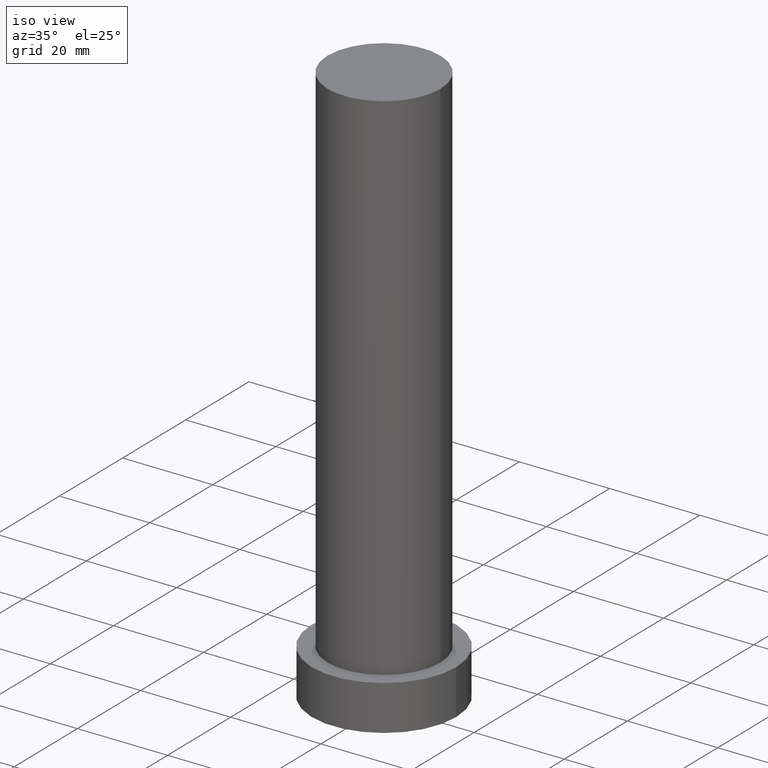
[diagram: clean part render]
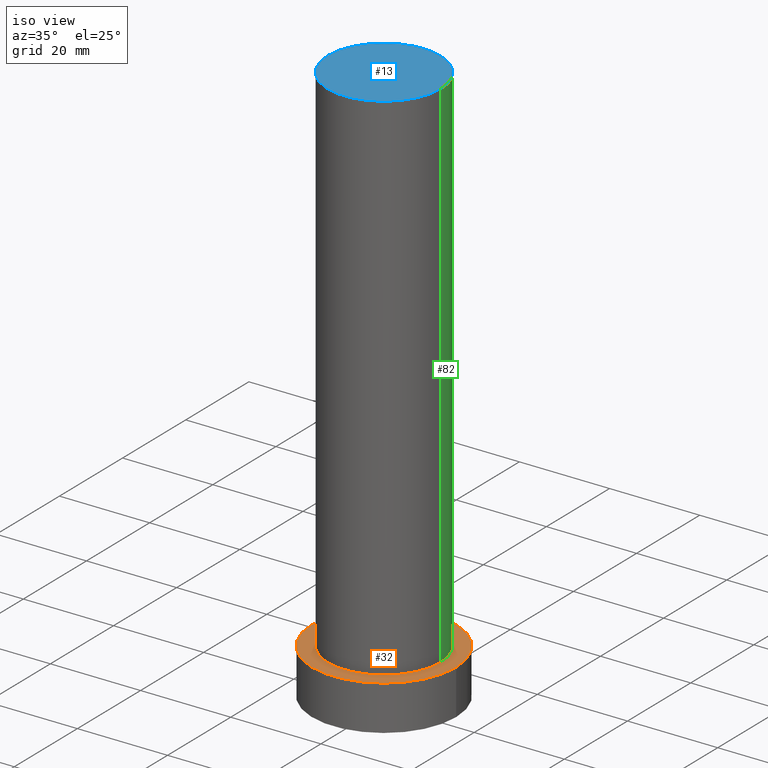
[diagram: same view with three faces highlighted in distinct colors, each labeled with its STEP entity id]
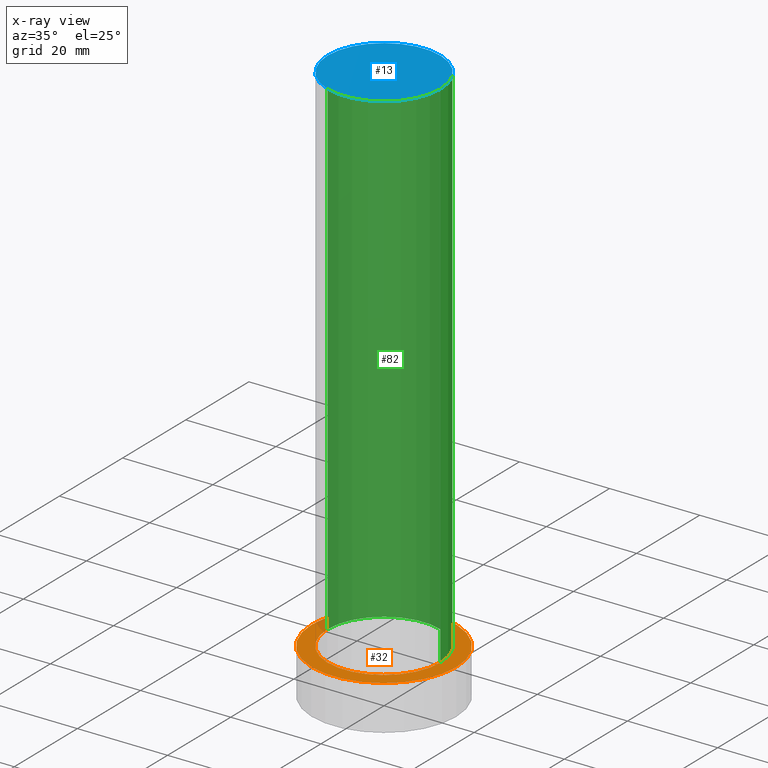
[diagram: x-ray of the same camera — body ghosted, the three highlighted faces saturated]
A machine part, iso view with three faces highlighted in distinct colors.
The next image is the same camera in x-ray (body ghosted, the three faces saturated) — at least one of them is partly hidden behind the body in this view.
Their STEP definitions:

[orange] entity #32 — the highlighted planar face has unit normal (0, 0, 1).
#6 = EDGE_CURVE ( 'NONE', #225, #93, #152, .T. ) ;
#7 = AXIS2_PLACEMENT_3D ( 'NONE', #226, #147, #50 ) ;
#8 = CARTESIAN_POINT ( 'NONE',  ( 0.000000000000000000, 0.000000000000000000, 10.00000000000000000 ) ) ;
#9 = FACE_BOUND ( 'NONE', #143, .T. ) ;
#11 = AXIS2_PLACEMENT_3D ( 'NONE', #48, #129, #70 ) ;
#16 = CARTESIAN_POINT ( 'NONE',  ( 12.50000000000000000, 1.530808498934191521E-15, 10.00000000000000000 ) ) ;
#20 = DIRECTION ( 'NONE',  ( 1.000000000000000000, 0.000000000000000000, 0.000000000000000000 ) ) ;
#27 = DIRECTION ( 'NONE',  ( 1.000000000000000000, 0.000000000000000000, 0.000000000000000000 ) ) ;
#28 = DIRECTION ( 'NONE',  ( 1.000000000000000000, 0.000000000000000000, 0.000000000000000000 ) ) ;
#32 = ADVANCED_FACE ( 'NONE', ( #9, #88 ), #86, .T. ) ;
#41 = CIRCLE ( 'NONE', #217, 16.00000000000000000 ) ;
#43 = EDGE_CURVE ( 'NONE', #165, #206, #109, .T. ) ;
#48 = CARTESIAN_POINT ( 'NONE',  ( 0.000000000000000000, 0.000000000000000000, 10.00000000000000000 ) ) ;
#49 = EDGE_LOOP ( 'NONE', ( #92, #106 ) ) ;
#50 = DIRECTION ( 'NONE',  ( 1.000000000000000000, 0.000000000000000000, 0.000000000000000000 ) ) ;
#64 = EDGE_CURVE ( 'NONE', #206, #165, #41, .T. ) ;
#70 = DIRECTION ( 'NONE',  ( 1.000000000000000000, 0.000000000000000000, -0.000000000000000000 ) ) ;
#71 = CARTESIAN_POINT ( 'NONE',  ( -16.00000000000000000, 0.000000000000000000, 10.00000000000000000 ) ) ;
#86 = PLANE ( 'NONE',  #11 ) ;
#88 = FACE_OUTER_BOUND ( 'NONE', #49, .T. ) ;
#92 = ORIENTED_EDGE ( 'NONE', *, *, #64, .T. ) ;
#93 = VERTEX_POINT ( 'NONE', #16 ) ;
#106 = ORIENTED_EDGE ( 'NONE', *, *, #43, .T. ) ;
#109 = CIRCLE ( 'NONE', #140, 16.00000000000000000 ) ;
#110 = DIRECTION ( 'NONE',  ( 0.000000000000000000, 0.000000000000000000, 1.000000000000000000 ) ) ;
#113 = ORIENTED_EDGE ( 'NONE', *, *, #6, .F. ) ;
#129 = DIRECTION ( 'NONE',  ( 0.000000000000000000, 0.000000000000000000, 1.000000000000000000 ) ) ;
#135 = DIRECTION ( 'NONE',  ( 0.000000000000000000, 0.000000000000000000, 1.000000000000000000 ) ) ;
#140 = AXIS2_PLACEMENT_3D ( 'NONE', #200, #110, #27 ) ;
#143 = EDGE_LOOP ( 'NONE', ( #113, #170 ) ) ;
#147 = DIRECTION ( 'NONE',  ( 0.000000000000000000, 0.000000000000000000, 1.000000000000000000 ) ) ;
#152 = CIRCLE ( 'NONE', #7, 12.50000000000000000 ) ;
#161 = CARTESIAN_POINT ( 'NONE',  ( -12.50000000000000000, 0.000000000000000000, 10.00000000000000000 ) ) ;
#165 = VERTEX_POINT ( 'NONE', #167 ) ;
#166 = DIRECTION ( 'NONE',  ( 0.000000000000000000, 0.000000000000000000, 1.000000000000000000 ) ) ;
#167 = CARTESIAN_POINT ( 'NONE',  ( 16.00000000000000000, 1.959434878635765131E-15, 10.00000000000000000 ) ) ;
#170 = ORIENTED_EDGE ( 'NONE', *, *, #201, .F. ) ;
#191 = AXIS2_PLACEMENT_3D ( 'NONE', #233, #135, #20 ) ;
#200 = CARTESIAN_POINT ( 'NONE',  ( 0.000000000000000000, 0.000000000000000000, 10.00000000000000000 ) ) ;
#201 = EDGE_CURVE ( 'NONE', #93, #225, #247, .T. ) ;
#206 = VERTEX_POINT ( 'NONE', #71 ) ;
#217 = AXIS2_PLACEMENT_3D ( 'NONE', #8, #166, #28 ) ;
#225 = VERTEX_POINT ( 'NONE', #161 ) ;
#226 = CARTESIAN_POINT ( 'NONE',  ( 0.000000000000000000, 0.000000000000000000, 10.00000000000000000 ) ) ;
#233 = CARTESIAN_POINT ( 'NONE',  ( 0.000000000000000000, 0.000000000000000000, 10.00000000000000000 ) ) ;
#247 = CIRCLE ( 'NONE', #191, 12.50000000000000000 ) ;

[blue] entity #13 — the highlighted planar face has unit normal (0, 0, 1).
#13 = ADVANCED_FACE ( 'NONE', ( #228 ), #123, .T. ) ;
#25 = CIRCLE ( 'NONE', #116, 12.50000000000000000 ) ;
#30 = AXIS2_PLACEMENT_3D ( 'NONE', #53, #194, #34 ) ;
#31 = VERTEX_POINT ( 'NONE', #204 ) ;
#34 = DIRECTION ( 'NONE',  ( 1.000000000000000000, 0.000000000000000000, 0.000000000000000000 ) ) ;
#52 = CARTESIAN_POINT ( 'NONE',  ( 0.000000000000000000, 0.000000000000000000, 125.0000000000000000 ) ) ;
#53 = CARTESIAN_POINT ( 'NONE',  ( 0.000000000000000000, 0.000000000000000000, 125.0000000000000000 ) ) ;
#72 = EDGE_LOOP ( 'NONE', ( #240, #73 ) ) ;
#73 = ORIENTED_EDGE ( 'NONE', *, *, #87, .T. ) ;
#87 = EDGE_CURVE ( 'NONE', #31, #145, #137, .T. ) ;
#95 = CARTESIAN_POINT ( 'NONE',  ( 0.000000000000000000, 0.000000000000000000, 125.0000000000000000 ) ) ;
#105 = EDGE_CURVE ( 'NONE', #145, #31, #25, .T. ) ;
#116 = AXIS2_PLACEMENT_3D ( 'NONE', #95, #174, #149 ) ;
#122 = DIRECTION ( 'NONE',  ( 0.000000000000000000, 0.000000000000000000, 1.000000000000000000 ) ) ;
#123 = PLANE ( 'NONE',  #252 ) ;
#137 = CIRCLE ( 'NONE', #30, 12.50000000000000000 ) ;
#145 = VERTEX_POINT ( 'NONE', #212 ) ;
#149 = DIRECTION ( 'NONE',  ( 1.000000000000000000, 0.000000000000000000, 0.000000000000000000 ) ) ;
#174 = DIRECTION ( 'NONE',  ( 0.000000000000000000, 0.000000000000000000, 1.000000000000000000 ) ) ;
#194 = DIRECTION ( 'NONE',  ( 0.000000000000000000, 0.000000000000000000, 1.000000000000000000 ) ) ;
#204 = CARTESIAN_POINT ( 'NONE',  ( 12.50000000000000000, 1.530808498934191521E-15, 125.0000000000000000 ) ) ;
#212 = CARTESIAN_POINT ( 'NONE',  ( -12.50000000000000000, 0.000000000000000000, 125.0000000000000000 ) ) ;
#224 = DIRECTION ( 'NONE',  ( 1.000000000000000000, 0.000000000000000000, -0.000000000000000000 ) ) ;
#228 = FACE_OUTER_BOUND ( 'NONE', #72, .T. ) ;
#240 = ORIENTED_EDGE ( 'NONE', *, *, #105, .T. ) ;
#252 = AXIS2_PLACEMENT_3D ( 'NONE', #52, #122, #224 ) ;

[green] entity #82 — the highlighted cylindrical surface (partial cylindrical patch) has radius 12.5 mm, axis along (-0, -0, -1).
#16 = CARTESIAN_POINT ( 'NONE',  ( 12.50000000000000000, 1.530808498934191521E-15, 10.00000000000000000 ) ) ;
#20 = DIRECTION ( 'NONE',  ( 1.000000000000000000, 0.000000000000000000, 0.000000000000000000 ) ) ;
#29 = ORIENTED_EDGE ( 'NONE', *, *, #96, .F. ) ;
#30 = AXIS2_PLACEMENT_3D ( 'NONE', #53, #194, #34 ) ;
#31 = VERTEX_POINT ( 'NONE', #204 ) ;
#34 = DIRECTION ( 'NONE',  ( 1.000000000000000000, 0.000000000000000000, 0.000000000000000000 ) ) ;
#47 = VECTOR ( 'NONE', #213, 1000.000000000000000 ) ;
#53 = CARTESIAN_POINT ( 'NONE',  ( 0.000000000000000000, 0.000000000000000000, 125.0000000000000000 ) ) ;
#59 = CARTESIAN_POINT ( 'NONE',  ( 0.000000000000000000, 0.000000000000000000, 125.0000000000000000 ) ) ;
#78 = CARTESIAN_POINT ( 'NONE',  ( 12.50000000000000000, 1.530808498934191521E-15, 125.0000000000000000 ) ) ;
#82 = ADVANCED_FACE ( 'NONE', ( #248 ), #154, .T. ) ;
#87 = EDGE_CURVE ( 'NONE', #31, #145, #137, .T. ) ;
#93 = VERTEX_POINT ( 'NONE', #16 ) ;
#96 = EDGE_CURVE ( 'NONE', #145, #225, #130, .T. ) ;
#98 = VECTOR ( 'NONE', #150, 1000.000000000000000 ) ;
#112 = EDGE_LOOP ( 'NONE', ( #146, #208, #238, #29 ) ) ;
#126 = EDGE_CURVE ( 'NONE', #31, #93, #234, .T. ) ;
#130 = LINE ( 'NONE', #209, #47 ) ;
#135 = DIRECTION ( 'NONE',  ( 0.000000000000000000, 0.000000000000000000, 1.000000000000000000 ) ) ;
#137 = CIRCLE ( 'NONE', #30, 12.50000000000000000 ) ;
#145 = VERTEX_POINT ( 'NONE', #212 ) ;
#146 = ORIENTED_EDGE ( 'NONE', *, *, #87, .F. ) ;
#148 = DIRECTION ( 'NONE',  ( -0.000000000000000000, -0.000000000000000000, -1.000000000000000000 ) ) ;
#150 = DIRECTION ( 'NONE',  ( -0.000000000000000000, -0.000000000000000000, -1.000000000000000000 ) ) ;
#154 = CYLINDRICAL_SURFACE ( 'NONE', #223, 12.50000000000000000 ) ;
#161 = CARTESIAN_POINT ( 'NONE',  ( -12.50000000000000000, 0.000000000000000000, 10.00000000000000000 ) ) ;
#191 = AXIS2_PLACEMENT_3D ( 'NONE', #233, #135, #20 ) ;
#194 = DIRECTION ( 'NONE',  ( 0.000000000000000000, 0.000000000000000000, 1.000000000000000000 ) ) ;
#201 = EDGE_CURVE ( 'NONE', #93, #225, #247, .T. ) ;
#204 = CARTESIAN_POINT ( 'NONE',  ( 12.50000000000000000, 1.530808498934191521E-15, 125.0000000000000000 ) ) ;
#208 = ORIENTED_EDGE ( 'NONE', *, *, #126, .T. ) ;
#209 = CARTESIAN_POINT ( 'NONE',  ( -12.50000000000000000, 0.000000000000000000, 125.0000000000000000 ) ) ;
#212 = CARTESIAN_POINT ( 'NONE',  ( -12.50000000000000000, 0.000000000000000000, 125.0000000000000000 ) ) ;
#213 = DIRECTION ( 'NONE',  ( -0.000000000000000000, -0.000000000000000000, -1.000000000000000000 ) ) ;
#223 = AXIS2_PLACEMENT_3D ( 'NONE', #59, #148, #230 ) ;
#225 = VERTEX_POINT ( 'NONE', #161 ) ;
#230 = DIRECTION ( 'NONE',  ( -1.000000000000000000, 0.000000000000000000, 0.000000000000000000 ) ) ;
#233 = CARTESIAN_POINT ( 'NONE',  ( 0.000000000000000000, 0.000000000000000000, 10.00000000000000000 ) ) ;
#234 = LINE ( 'NONE', #78, #98 ) ;
#238 = ORIENTED_EDGE ( 'NONE', *, *, #201, .T. ) ;
#247 = CIRCLE ( 'NONE', #191, 12.50000000000000000 ) ;
#248 = FACE_OUTER_BOUND ( 'NONE', #112, .T. ) ;